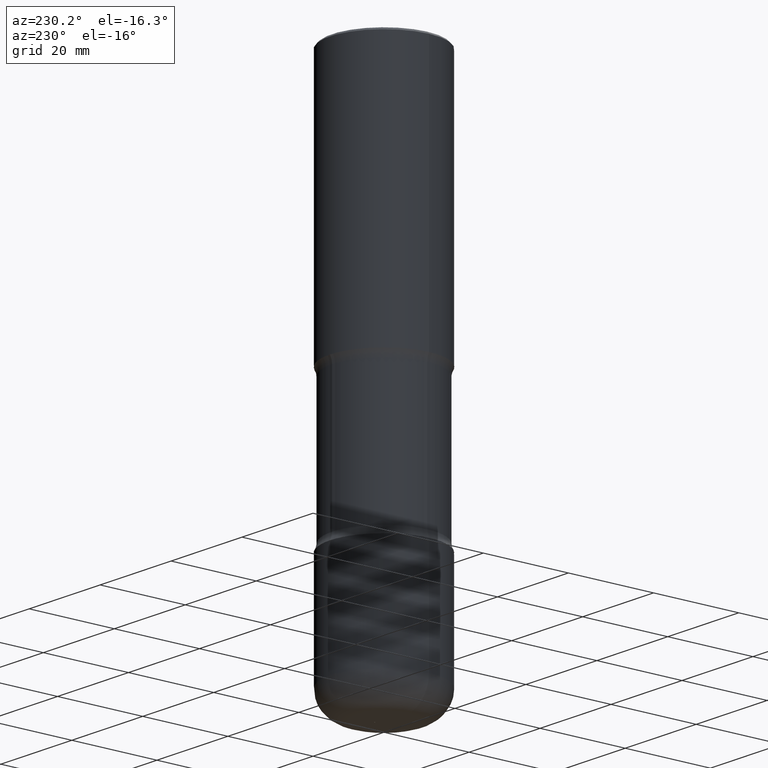
[diagram: clean part render]
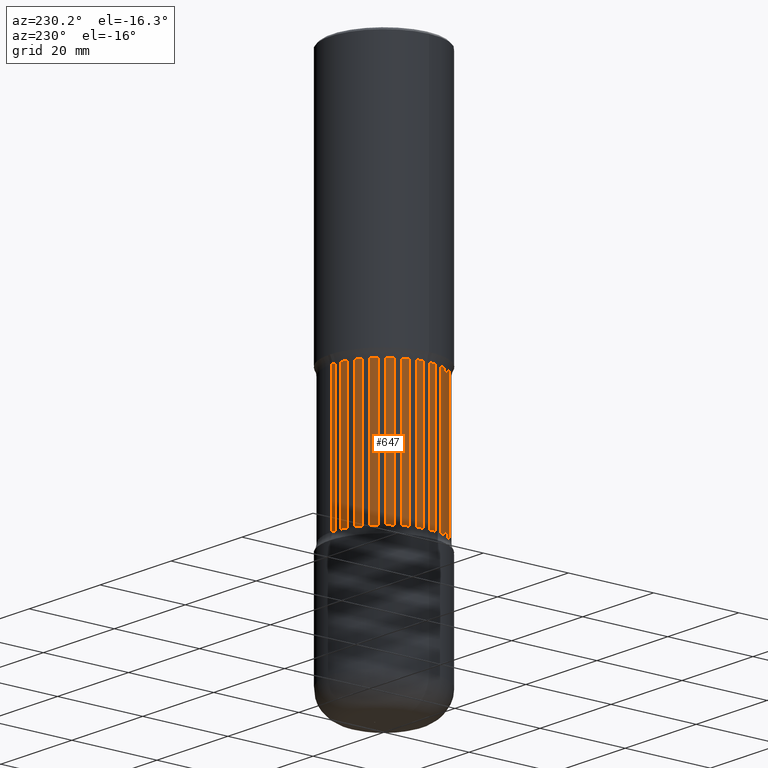
[diagram: same view with one face highlighted and labeled with its STEP entity id]
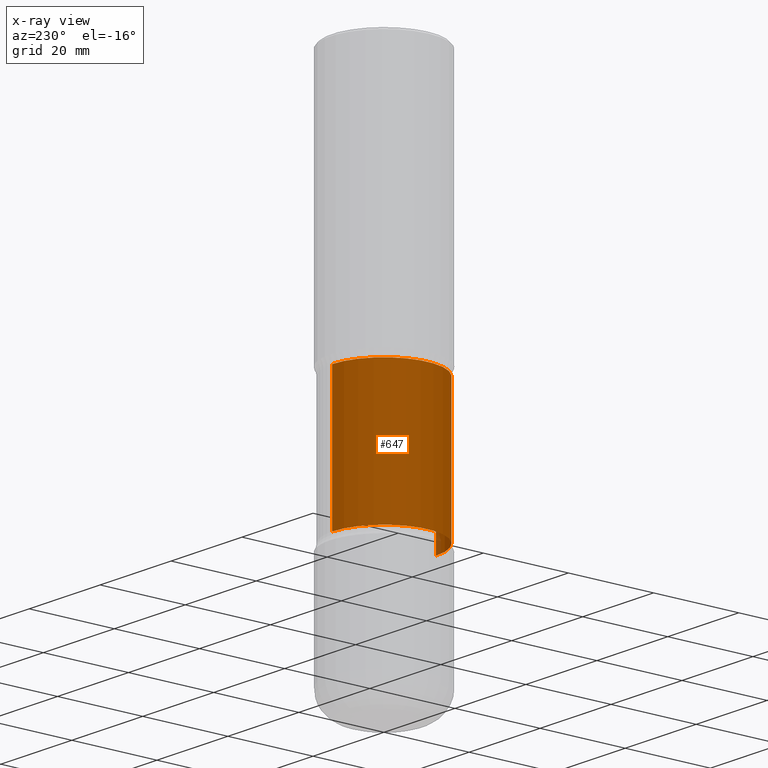
[diagram: x-ray of the same camera — body ghosted, the highlighted face saturated]
A machine part, auxiliary view. The second image highlights one B-rep face of the part: STEP entity #647.
The next image is the same camera in x-ray: the body ghosted, the highlighted face saturated — about 1% of this face is hidden behind the body in this view.
In plain terms, the highlighted cylindrical surface (partial cylindrical patch) has radius 12.192 mm, axis along (0, -0, -1).
Its self-contained STEP definition (entity closure, byte-faithful):
#59 = VERTEX_POINT ( 'NONE', #549 ) ;
#62 = CIRCLE ( 'NONE', #705, 0.4799999999999999267 ) ;
#68 = DIRECTION ( 'NONE',  ( 6.982962677686265922E-15, 1.000000000000000000, -4.553079989440437514E-15 ) ) ;
#103 = VERTEX_POINT ( 'NONE', #554 ) ;
#130 = DIRECTION ( 'NONE',  ( 2.445077249876360463E-29, -3.492042069763313983E-15, -1.000000000000000000 ) ) ;
#140 = CYLINDRICAL_SURFACE ( 'NONE', #356, 0.4800000000000000933 ) ;
#147 = DIRECTION ( 'NONE',  ( 6.982962677686265922E-15, 1.000000000000000000, -3.414809992080327938E-15 ) ) ;
#169 = EDGE_CURVE ( 'NONE', #59, #703, #417, .T. ) ;
#203 = CARTESIAN_POINT ( 'NONE',  ( 9.004674815765322981E-29, -1.285621320434089027E-14, -3.682176700168747541 ) ) ;
#206 = CARTESIAN_POINT ( 'NONE',  ( 3.351822085289499056E-15, 0.4799999999999873257, -3.682176700168749317 ) ) ;
#211 = DIRECTION ( 'NONE',  ( 2.445077249876360463E-29, -3.492042069763313588E-15, -1.000000000000000000 ) ) ;
#224 = EDGE_LOOP ( 'NONE', ( #428, #599, #758, #359 ) ) ;
#244 = VECTOR ( 'NONE', #211, 39.37007874015748143 ) ;
#247 = EDGE_CURVE ( 'NONE', #757, #103, #62, .T. ) ;
#270 = LINE ( 'NONE', #513, #244 ) ;
#303 = AXIS2_PLACEMENT_3D ( 'NONE', #203, #130, #147 ) ;
#326 = DIRECTION ( 'NONE',  ( 6.982962677686265922E-15, 1.000000000000000000, -3.414809992080329516E-15 ) ) ;
#356 = AXIS2_PLACEMENT_3D ( 'NONE', #447, #620, #68 ) ;
#359 = ORIENTED_EDGE ( 'NONE', *, *, #169, .F. ) ;
#367 = VECTOR ( 'NONE', #743, 39.37007874015748143 ) ;
#379 = FACE_OUTER_BOUND ( 'NONE', #224, .T. ) ;
#417 = CIRCLE ( 'NONE', #303, 0.4800000000000001488 ) ;
#428 = ORIENTED_EDGE ( 'NONE', *, *, #725, .F. ) ;
#447 = CARTESIAN_POINT ( 'NONE',  ( 1.220977778973322447E-28, -1.743371864863120234E-14, -4.993015846101650723 ) ) ;
#461 = DIRECTION ( 'NONE',  ( 2.445077249876360463E-29, -3.492042069763313983E-15, -1.000000000000000000 ) ) ;
#512 = EDGE_CURVE ( 'NONE', #103, #703, #662, .T. ) ;
#513 = CARTESIAN_POINT ( 'NONE',  ( -3.293039038930212845E-15, -0.4800000000000174682, -4.993015846101648947 ) ) ;
#549 = CARTESIAN_POINT ( 'NONE',  ( -3.361644018907960125E-15, -0.4800000000000130274, -3.682176700168745764 ) ) ;
#554 = CARTESIAN_POINT ( 'NONE',  ( 3.351822085289467107E-15, 0.4799999999999913780, -2.442823299831254680 ) ) ;
#581 = CARTESIAN_POINT ( 'NONE',  ( -3.361644018907992074E-15, -0.4800000000000085310, -2.442823299831251127 ) ) ;
#599 = ORIENTED_EDGE ( 'NONE', *, *, #247, .T. ) ;
#620 = DIRECTION ( 'NONE',  ( 2.445077249876360463E-29, -3.492042069763313983E-15, -1.000000000000000000 ) ) ;
#634 = CARTESIAN_POINT ( 'NONE',  ( 5.974360012043205684E-29, -8.528338991058145120E-15, -2.442823299831252903 ) ) ;
#647 = ADVANCED_FACE ( 'NONE', ( #379 ), #140, .T. ) ;
#656 = CARTESIAN_POINT ( 'NONE',  ( 3.351822085289530610E-15, 0.4799999999999826628, -4.993015846101653388 ) ) ;
#662 = LINE ( 'NONE', #656, #367 ) ;
#703 = VERTEX_POINT ( 'NONE', #206 ) ;
#705 = AXIS2_PLACEMENT_3D ( 'NONE', #634, #461, #326 ) ;
#725 = EDGE_CURVE ( 'NONE', #757, #59, #270, .T. ) ;
#743 = DIRECTION ( 'NONE',  ( 2.445077249876360463E-29, -3.492042069763313588E-15, -1.000000000000000000 ) ) ;
#757 = VERTEX_POINT ( 'NONE', #581 ) ;
#758 = ORIENTED_EDGE ( 'NONE', *, *, #512, .T. ) ;